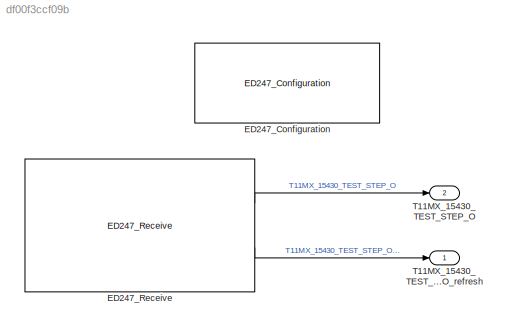
MODEL slx_df00f3ccf09b
KIND model
CONFIG AbsTol = auto
CONFIG EnableMultiTasking = off
CONFIG FixedStep = auto
CONFIG MaxStep = auto
CONFIG MinStep = auto
CONFIG RelTol = 1e-3
CONFIG SampleTimeConstraint = Unconstrained
CONFIG SolverName = VariableStepAuto
CONFIG StartTime = 0.0
CONFIG StopTime = 10.0
WORKSPACE source: mxarray member
WORKSPACE ED247Configuration: object (value not decoded)
BLOCK [Reference] ED247_Configuration  REF=lib_ed247/ED247_Configuration
  Ports = []
  SourceBlock = lib_ed247/ED247_Configuration
  SourceProductName = Airbus ED247
  SourceType = Configurable block example
BLOCK [Reference] ED247_Receive  REF=lib_ed247/ED247_Receive
  Ports = [0, 2]
  SourceBlock = lib_ed247/ED247_Receive
  SourceProductName = Airbus ED247
  SourceType = ED247 Receive
BLOCK [Outport] T11MX_15430_TEST_STEP_O
  OutDataTypeStr = uint8
  Port = 2
  PortDimensions = 4
  SampleTime = 0.1
BLOCK [Outport] T11MX_15430_TEST_STEP_O_refresh
LINE ED247_Receive:1 -> T11MX_15430_TEST_STEP_O:1
LINE ED247_Receive:2 -> T11MX_15430_TEST_STEP_O_refresh:1
